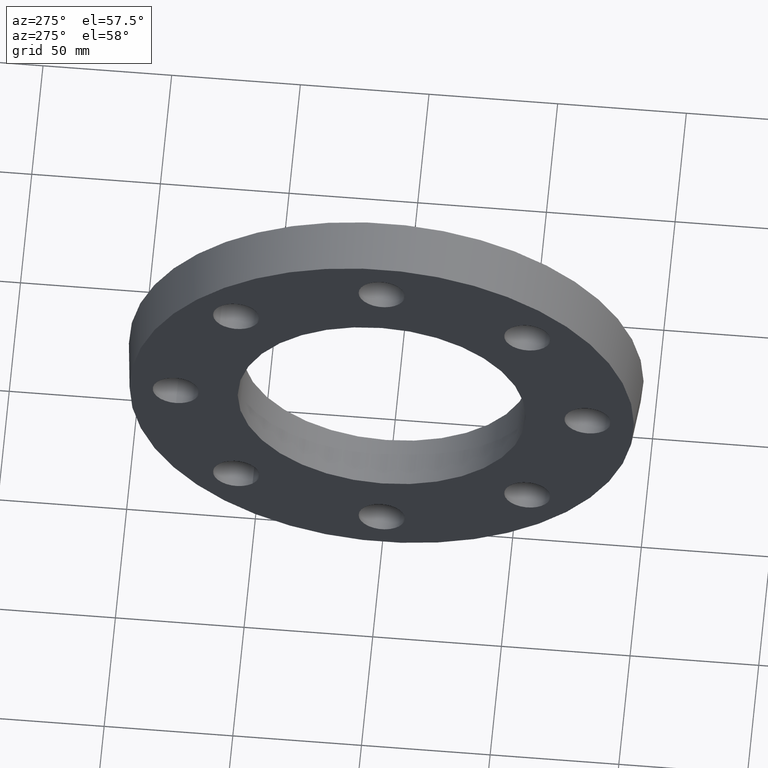
[diagram: clean part render]
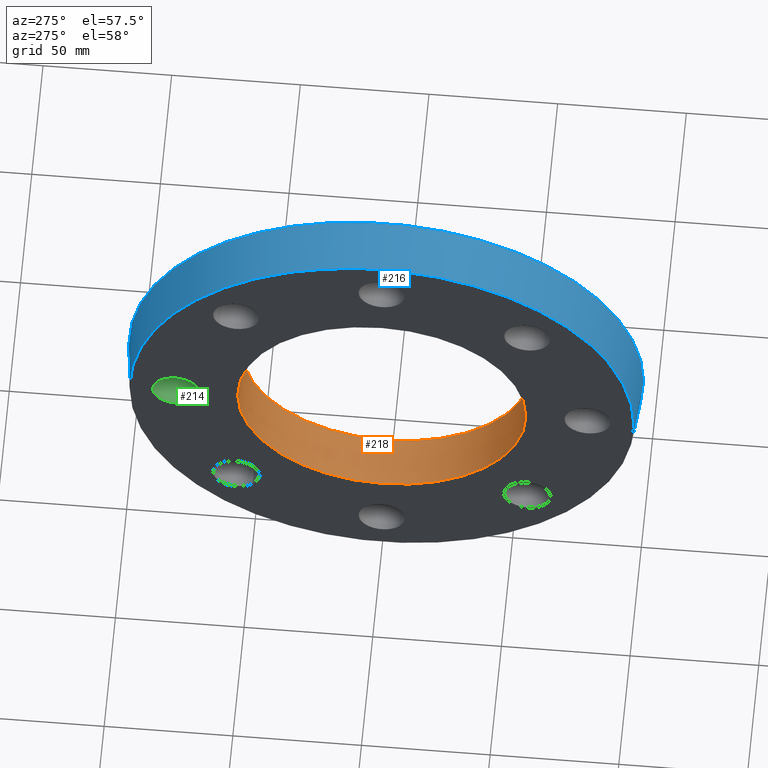
[diagram: same view with three faces highlighted in distinct colors, each labeled with its STEP entity id]
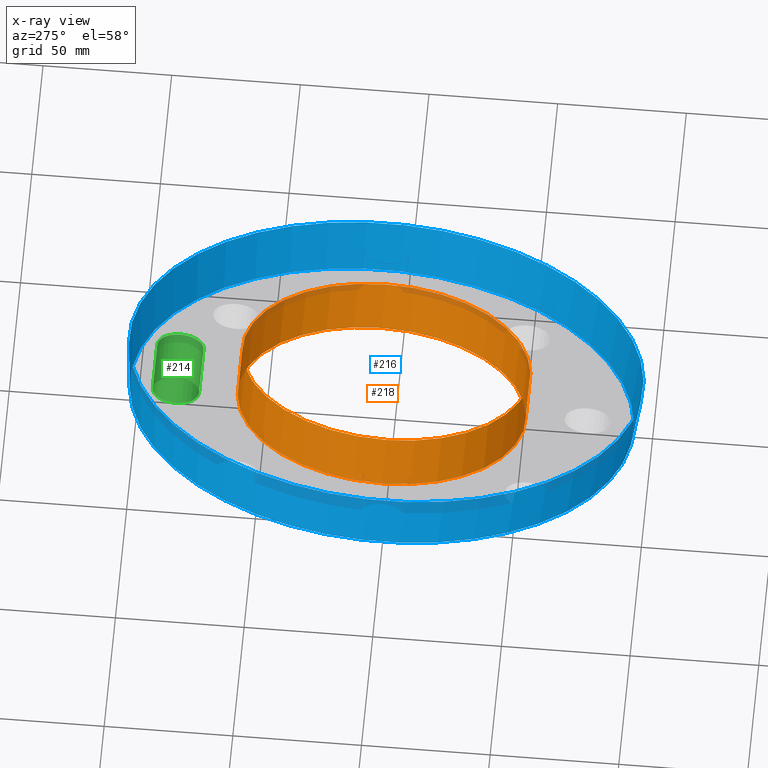
[diagram: x-ray of the same camera — body ghosted, the three highlighted faces saturated]
A machine part, auxiliary view with three faces highlighted in distinct colors.
The next image is the same camera in x-ray (body ghosted, the three faces saturated) — at least one of them is partly hidden behind the body in this view.
Their STEP definitions:

[orange] entity #218 — the highlighted cylindrical surface (bore or boss wall) has radius 56 mm, axis along (-1, 0, 0).
#45=FACE_BOUND('',#97,.T.);
#57=FACE_OUTER_BOUND('',#96,.T.);
#96=EDGE_LOOP('',(#196));
#97=EDGE_LOOP('',(#197));
#115=CIRCLE('',#247,56.);
#117=CIRCLE('',#251,56.);
#135=VERTEX_POINT('',#363);
#137=VERTEX_POINT('',#369);
#155=EDGE_CURVE('',#135,#135,#115,.T.);
#157=EDGE_CURVE('',#137,#137,#117,.T.);
#196=ORIENTED_EDGE('',*,*,#155,.F.);
#197=ORIENTED_EDGE('',*,*,#157,.T.);
#206=CYLINDRICAL_SURFACE('',#252,56.);
#218=ADVANCED_FACE('',(#57,#45),#206,.F.);
#247=AXIS2_PLACEMENT_3D('',#364,#307,#308);
#251=AXIS2_PLACEMENT_3D('',#370,#315,#316);
#252=AXIS2_PLACEMENT_3D('',#371,#317,#318);
#307=DIRECTION('center_axis',(-1.,0.,0.));
#308=DIRECTION('ref_axis',(0.,0.,1.));
#315=DIRECTION('center_axis',(-1.,0.,0.));
#316=DIRECTION('ref_axis',(0.,0.,1.));
#317=DIRECTION('center_axis',(-1.,0.,0.));
#318=DIRECTION('ref_axis',(0.,-1.,0.));
#363=CARTESIAN_POINT('',(10.,-56.,0.));
#364=CARTESIAN_POINT('Origin',(10.,0.,0.));
#369=CARTESIAN_POINT('',(-10.,-56.,0.));
#370=CARTESIAN_POINT('Origin',(-10.,0.,0.));
#371=CARTESIAN_POINT('Origin',(0.,0.,0.));

[blue] entity #216 — the highlighted conical surface has half-angle 5.711 deg.
#15=CONICAL_SURFACE('',#248,99.,5.71059313749962);
#35=FACE_BOUND('',#85,.T.);
#55=FACE_OUTER_BOUND('',#84,.T.);
#84=EDGE_LOOP('',(#184));
#85=EDGE_LOOP('',(#185));
#114=CIRCLE('',#246,100.);
#116=CIRCLE('',#249,98.);
#134=VERTEX_POINT('',#361);
#136=VERTEX_POINT('',#366);
#154=EDGE_CURVE('',#134,#134,#114,.T.);
#156=EDGE_CURVE('',#136,#136,#116,.T.);
#184=ORIENTED_EDGE('',*,*,#156,.F.);
#185=ORIENTED_EDGE('',*,*,#154,.T.);
#216=ADVANCED_FACE('',(#55,#35),#15,.T.);
#246=AXIS2_PLACEMENT_3D('',#362,#305,#306);
#248=AXIS2_PLACEMENT_3D('',#365,#309,#310);
#249=AXIS2_PLACEMENT_3D('',#367,#311,#312);
#305=DIRECTION('center_axis',(-1.,0.,0.));
#306=DIRECTION('ref_axis',(0.,0.,1.));
#309=DIRECTION('center_axis',(1.,0.,0.));
#310=DIRECTION('ref_axis',(0.,-1.,0.));
#311=DIRECTION('center_axis',(-1.,0.,0.));
#312=DIRECTION('ref_axis',(0.,0.,1.));
#361=CARTESIAN_POINT('',(10.,-100.,0.));
#362=CARTESIAN_POINT('Origin',(10.,0.,0.));
#365=CARTESIAN_POINT('Origin',(6.66133814775094E-15,0.,0.));
#366=CARTESIAN_POINT('',(-9.99999999999999,-98.,0.));
#367=CARTESIAN_POINT('Origin',(-9.99999999999999,0.,0.));

[green] entity #214 — the highlighted cylindrical surface (bore or boss wall) has radius 9 mm, axis along (-1, 0, 0).
#25=FACE_BOUND('',#73,.T.);
#53=FACE_OUTER_BOUND('',#72,.T.);
#72=EDGE_LOOP('',(#172));
#73=EDGE_LOOP('',(#173));
#112=CIRCLE('',#243,9.);
#113=CIRCLE('',#244,9.);
#132=VERTEX_POINT('',#356);
#133=VERTEX_POINT('',#358);
#152=EDGE_CURVE('',#132,#132,#112,.T.);
#153=EDGE_CURVE('',#133,#133,#113,.T.);
#172=ORIENTED_EDGE('',*,*,#152,.F.);
#173=ORIENTED_EDGE('',*,*,#153,.F.);
#205=CYLINDRICAL_SURFACE('',#242,9.);
#214=ADVANCED_FACE('',(#53,#25),#205,.F.);
#242=AXIS2_PLACEMENT_3D('',#355,#297,#298);
#243=AXIS2_PLACEMENT_3D('',#357,#299,#300);
#244=AXIS2_PLACEMENT_3D('',#359,#301,#302);
#297=DIRECTION('center_axis',(-1.,0.,0.));
#298=DIRECTION('ref_axis',(0.,0.,1.));
#299=DIRECTION('center_axis',(1.,0.,0.));
#300=DIRECTION('ref_axis',(0.,0.,1.));
#301=DIRECTION('center_axis',(-1.,0.,0.));
#302=DIRECTION('ref_axis',(0.,0.,1.));
#355=CARTESIAN_POINT('Origin',(10.,80.,0.));
#356=CARTESIAN_POINT('',(-10.,80.,-9.));
#357=CARTESIAN_POINT('Origin',(-10.,80.,0.));
#358=CARTESIAN_POINT('',(10.,80.,-9.));
#359=CARTESIAN_POINT('Origin',(10.,80.,0.));